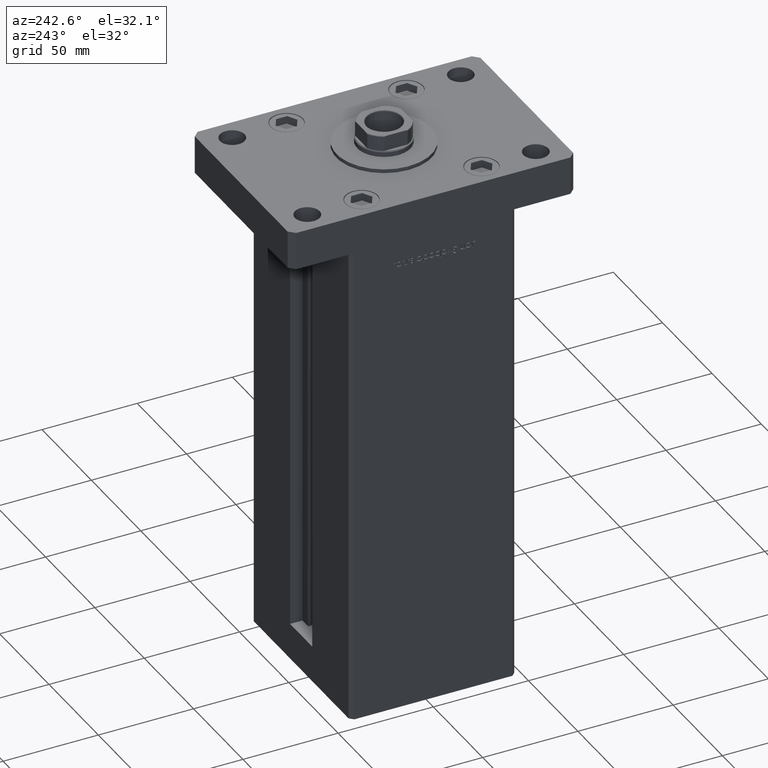
[diagram: clean part render]
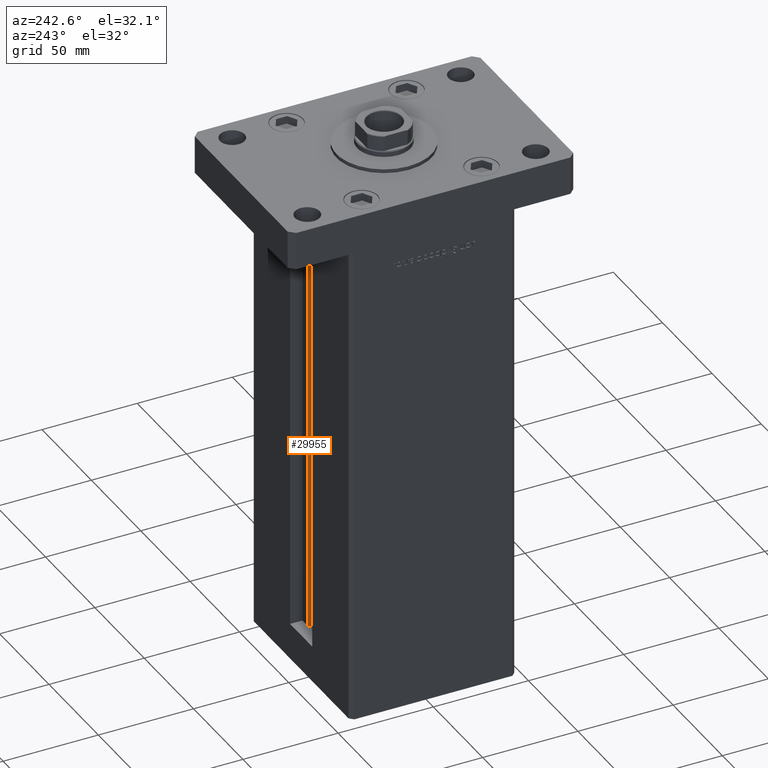
[diagram: same view with one face highlighted and labeled with its STEP entity id]
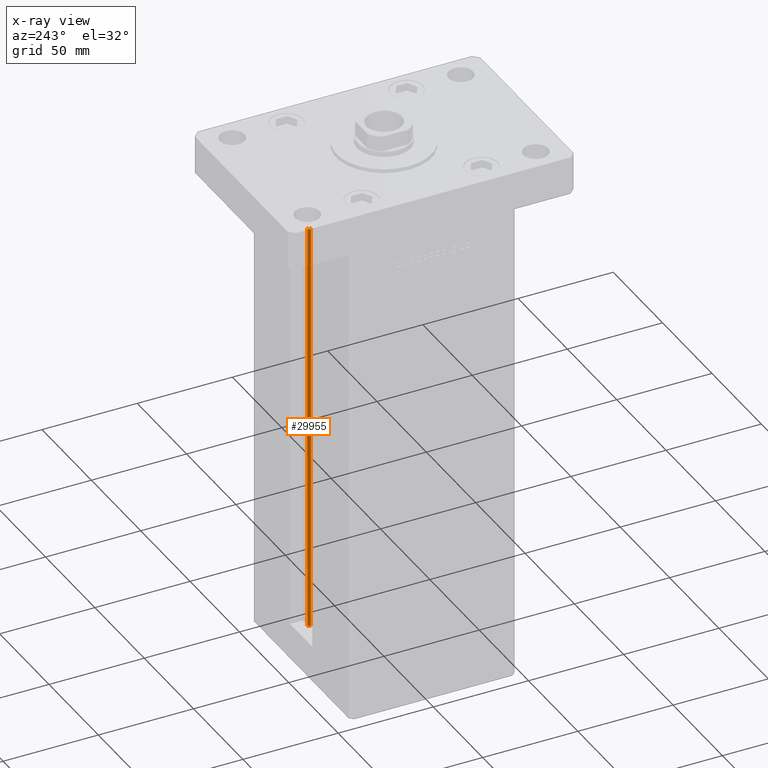
[diagram: x-ray of the same camera — body ghosted, the highlighted face saturated]
A machine part, auxiliary view. The second image highlights one B-rep face of the part: STEP entity #29955.
The next image is the same camera in x-ray: the body ghosted, the highlighted face saturated — about 9% of this face is hidden behind the body in this view.
In plain terms, the highlighted cylindrical surface (edge-blend (fillet) strip) has radius 0.9333 mm, axis along (0, 0, 1).
Its self-contained STEP definition (entity closure, byte-faithful):
#3536 = EDGE_CURVE ( 'NONE', #46695, #27637, #4809, .T. ) ;
#4809 = LINE ( 'NONE', #33440, #16369 ) ;
#6161 = DIRECTION ( 'NONE',  ( 0.000000000000000000, 0.000000000000000000, -1.000000000000000000 ) ) ;
#6836 = CARTESIAN_POINT ( 'NONE',  ( 6.183333333333997928, 36.99999999999999289, 218.5000000000000000 ) ) ;
#6995 = CARTESIAN_POINT ( 'NONE',  ( 6.183333333333997928, 36.99999999999999289, 0.000000000000000000 ) ) ;
#8014 = FACE_OUTER_BOUND ( 'NONE', #12025, .T. ) ;
#8613 = ORIENTED_EDGE ( 'NONE', *, *, #22378, .T. ) ;
#12025 = EDGE_LOOP ( 'NONE', ( #52321, #52023, #8613, #44821 ) ) ;
#12027 = DIRECTION ( 'NONE',  ( 1.000000000000000000, 0.000000000000000000, 0.000000000000000000 ) ) ;
#12201 = AXIS2_PLACEMENT_3D ( 'NONE', #20717, #29168, #12027 ) ;
#15661 = CYLINDRICAL_SURFACE ( 'NONE', #31649, 0.9333333333340008142 ) ;
#15994 = EDGE_CURVE ( 'NONE', #48272, #27637, #20937, .T. ) ;
#16195 = DIRECTION ( 'NONE',  ( 1.000000000000000000, 0.000000000000000000, 0.000000000000000000 ) ) ;
#16369 = VECTOR ( 'NONE', #53889, 1000.000000000000000 ) ;
#16629 = VECTOR ( 'NONE', #29981, 1000.000000000000000 ) ;
#17713 = LINE ( 'NONE', #29708, #16629 ) ;
#18807 = CARTESIAN_POINT ( 'NONE',  ( 5.375042956467944499, 35.59999999999899245, 218.5000000000000000 ) ) ;
#20717 = CARTESIAN_POINT ( 'NONE',  ( 6.183333333333997928, 36.06666666666598786, 0.000000000000000000 ) ) ;
#20803 = CARTESIAN_POINT ( 'NONE',  ( 6.183333333333997928, 36.06666666666598786, 0.000000000000000000 ) ) ;
#20937 = CIRCLE ( 'NONE', #37505, 0.9333333333340008142 ) ;
#22378 = EDGE_CURVE ( 'NONE', #26754, #48272, #17713, .T. ) ;
#23383 = CARTESIAN_POINT ( 'NONE',  ( 5.375042956467945388, 35.59999999999898534, 0.000000000000000000 ) ) ;
#26754 = VERTEX_POINT ( 'NONE', #23383 ) ;
#27637 = VERTEX_POINT ( 'NONE', #6836 ) ;
#29168 = DIRECTION ( 'NONE',  ( -0.000000000000000000, -0.000000000000000000, -1.000000000000000000 ) ) ;
#29708 = CARTESIAN_POINT ( 'NONE',  ( 5.375042956467945388, 35.59999999999898534, 0.000000000000000000 ) ) ;
#29955 = ADVANCED_FACE ( 'NONE', ( #8014 ), #15661, .T. ) ;
#29981 = DIRECTION ( 'NONE',  ( -0.000000000000000000, -0.000000000000000000, 1.000000000000000000 ) ) ;
#31337 = CIRCLE ( 'NONE', #12201, 0.9333333333340008142 ) ;
#31649 = AXIS2_PLACEMENT_3D ( 'NONE', #20803, #49988, #16195 ) ;
#31761 = CARTESIAN_POINT ( 'NONE',  ( 6.183333333333997928, 36.06666666666598786, 218.5000000000000000 ) ) ;
#33440 = CARTESIAN_POINT ( 'NONE',  ( 6.183333333333997928, 36.99999999999999289, 0.000000000000000000 ) ) ;
#37505 = AXIS2_PLACEMENT_3D ( 'NONE', #31761, #6161, #43785 ) ;
#43785 = DIRECTION ( 'NONE',  ( 1.000000000000000000, 0.000000000000000000, 0.000000000000000000 ) ) ;
#44821 = ORIENTED_EDGE ( 'NONE', *, *, #15994, .T. ) ;
#46695 = VERTEX_POINT ( 'NONE', #6995 ) ;
#48272 = VERTEX_POINT ( 'NONE', #18807 ) ;
#49988 = DIRECTION ( 'NONE',  ( -0.000000000000000000, -0.000000000000000000, 1.000000000000000000 ) ) ;
#52023 = ORIENTED_EDGE ( 'NONE', *, *, #52454, .F. ) ;
#52321 = ORIENTED_EDGE ( 'NONE', *, *, #3536, .F. ) ;
#52454 = EDGE_CURVE ( 'NONE', #26754, #46695, #31337, .T. ) ;
#53889 = DIRECTION ( 'NONE',  ( -0.000000000000000000, -0.000000000000000000, 1.000000000000000000 ) ) ;